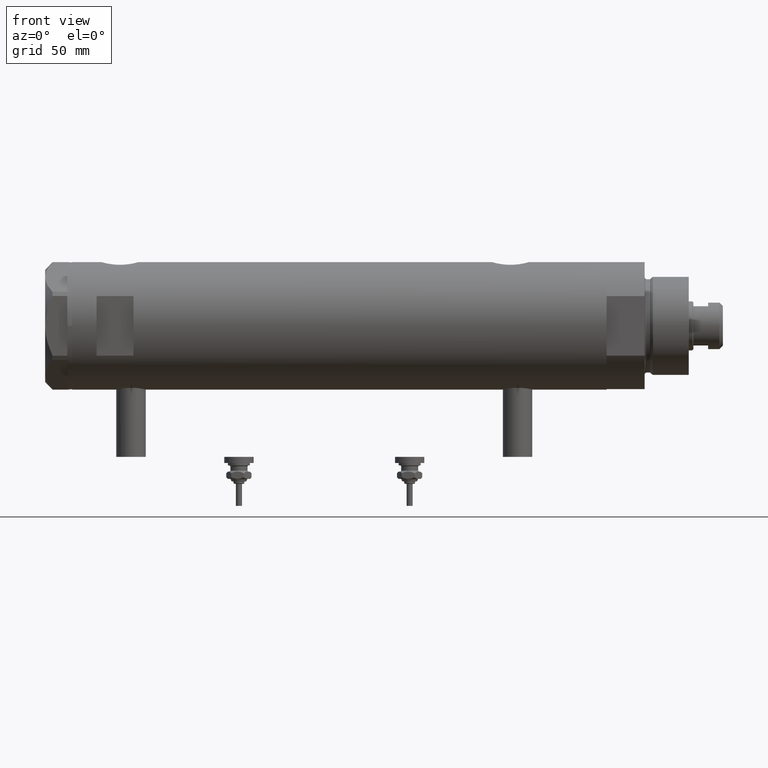
[diagram: clean part render]
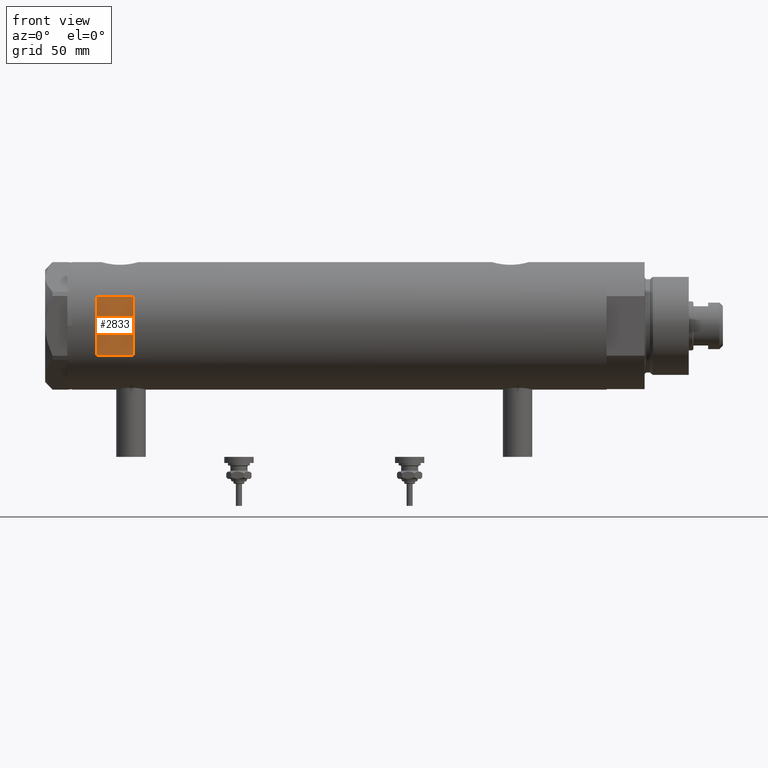
[diagram: same view with one face highlighted and labeled with its STEP entity id]
A machine part, front view. The second image highlights one B-rep face of the part: STEP entity #2833.
In plain terms, the highlighted planar face has unit normal (-0, 1, 0).
Its self-contained STEP definition (entity closure, byte-faithful):
#116 = LINE ( 'NONE', #2531, #4444 ) ;
#534 = DIRECTION ( 'NONE',  ( 0.000000000000000000, 1.000000000000000000, 0.000000000000000000 ) ) ;
#562 = CARTESIAN_POINT ( 'NONE',  ( -26.00000000000000355, -23.00000000000000355, 98.95000000000001705 ) ) ;
#835 = LINE ( 'NONE', #5211, #2624 ) ;
#1312 = CARTESIAN_POINT ( 'NONE',  ( 12.12435565298214080, -23.00000000000000355, 83.95000000000001705 ) ) ;
#1341 = CARTESIAN_POINT ( 'NONE',  ( -12.12435565298214080, -23.00000000000000355, 83.95000000000001705 ) ) ;
#1397 = DIRECTION ( 'NONE',  ( -0.000000000000000000, -0.000000000000000000, -1.000000000000000000 ) ) ;
#1520 = DIRECTION ( 'NONE',  ( 0.000000000000000000, -0.000000000000000000, 1.000000000000000000 ) ) ;
#1664 = EDGE_CURVE ( 'NONE', #4670, #2429, #4808, .T. ) ;
#1986 = CARTESIAN_POINT ( 'NONE',  ( -12.12435565298214080, -23.00000000000000355, -108.9500000000000028 ) ) ;
#2212 = LINE ( 'NONE', #4169, #4034 ) ;
#2429 = VERTEX_POINT ( 'NONE', #1341 ) ;
#2461 = VECTOR ( 'NONE', #1397, 1000.000000000000000 ) ;
#2531 = CARTESIAN_POINT ( 'NONE',  ( -26.00000000000000355, -23.00000000000000355, 83.95000000000003126 ) ) ;
#2550 = ORIENTED_EDGE ( 'NONE', *, *, #3135, .T. ) ;
#2565 = DIRECTION ( 'NONE',  ( 1.000000000000000000, -0.000000000000000000, -0.000000000000000000 ) ) ;
#2624 = VECTOR ( 'NONE', #2774, 1000.000000000000000 ) ;
#2704 = CARTESIAN_POINT ( 'NONE',  ( 12.12435565298214080, -23.00000000000000355, 98.95000000000001705 ) ) ;
#2774 = DIRECTION ( 'NONE',  ( 1.000000000000000000, -0.000000000000000000, -0.000000000000000000 ) ) ;
#2833 = ADVANCED_FACE ( 'NONE', ( #3302 ), #4901, .F. ) ;
#2933 = EDGE_CURVE ( 'NONE', #2429, #5658, #116, .T. ) ;
#3135 = EDGE_CURVE ( 'NONE', #5658, #3947, #2212, .T. ) ;
#3302 = FACE_OUTER_BOUND ( 'NONE', #4190, .T. ) ;
#3472 = ORIENTED_EDGE ( 'NONE', *, *, #5271, .F. ) ;
#3947 = VERTEX_POINT ( 'NONE', #2704 ) ;
#4034 = VECTOR ( 'NONE', #4419, 1000.000000000000000 ) ;
#4163 = CARTESIAN_POINT ( 'NONE',  ( -12.12435565298214080, -23.00000000000000355, 98.95000000000001705 ) ) ;
#4169 = CARTESIAN_POINT ( 'NONE',  ( 12.12435565298214080, -23.00000000000000355, -108.9500000000000028 ) ) ;
#4190 = EDGE_LOOP ( 'NONE', ( #6209, #5225, #2550, #3472 ) ) ;
#4419 = DIRECTION ( 'NONE',  ( 0.000000000000000000, 0.000000000000000000, 1.000000000000000000 ) ) ;
#4444 = VECTOR ( 'NONE', #2565, 1000.000000000000000 ) ;
#4670 = VERTEX_POINT ( 'NONE', #4163 ) ;
#4808 = LINE ( 'NONE', #1986, #2461 ) ;
#4901 = PLANE ( 'NONE',  #6211 ) ;
#5211 = CARTESIAN_POINT ( 'NONE',  ( -26.00000000000000355, -23.00000000000000355, 98.95000000000001705 ) ) ;
#5225 = ORIENTED_EDGE ( 'NONE', *, *, #2933, .T. ) ;
#5271 = EDGE_CURVE ( 'NONE', #4670, #3947, #835, .T. ) ;
#5658 = VERTEX_POINT ( 'NONE', #1312 ) ;
#6209 = ORIENTED_EDGE ( 'NONE', *, *, #1664, .T. ) ;
#6211 = AXIS2_PLACEMENT_3D ( 'NONE', #562, #534, #1520 ) ;